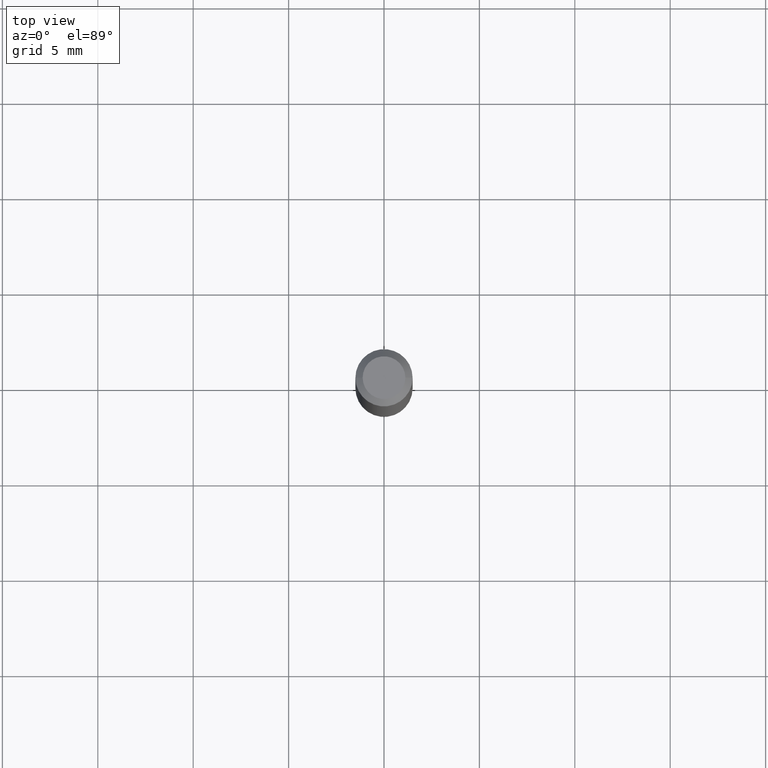
[diagram: clean part render]
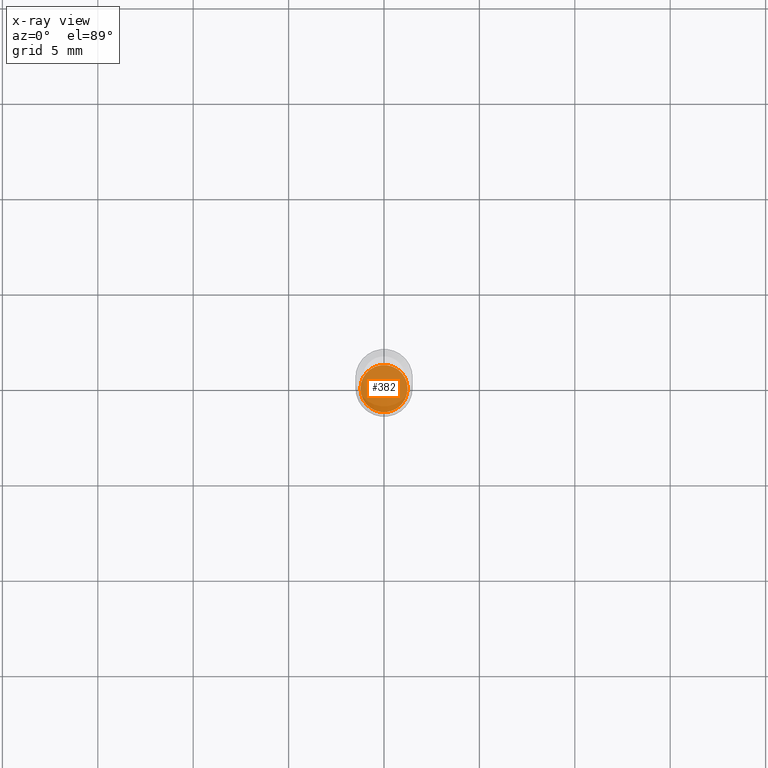
[diagram: x-ray — body ghosted, one internal face saturated and labeled with its STEP entity id]
A machine part, top view, then the same camera in x-ray: the body is ghosted and one INTERNAL B-rep face — a face not visible from any outside direction — is saturated and labeled: STEP entity #382.
In plain terms, the highlighted planar face has unit normal (-0, 0, 1).
Its self-contained STEP definition (entity closure, byte-faithful):
#31 = VERTEX_POINT ( 'NONE', #41 ) ;
#39 = PLANE ( 'NONE',  #424 ) ;
#41 = CARTESIAN_POINT ( 'NONE',  ( -0.04870000000000000023, -4.201065793157224292E-15, -1.303100000000000147 ) ) ;
#66 = CARTESIAN_POINT ( 'NONE',  ( 0.04870000000000000023, -4.889819615049825556E-15, -1.303100000000000147 ) ) ;
#67 = FACE_OUTER_BOUND ( 'NONE', #253, .T. ) ;
#93 = VERTEX_POINT ( 'NONE', #66 ) ;
#150 = DIRECTION ( 'NONE',  ( -2.438088387897960049E-29, 3.491481338843145188E-15, 1.000000000000000000 ) ) ;
#178 = DIRECTION ( 'NONE',  ( -2.445468806185136597E-29, 3.491481338843145583E-15, 1.000000000000000000 ) ) ;
#188 = CARTESIAN_POINT ( 'NONE',  ( 3.186690401339851824E-29, -4.549749332646504039E-15, -1.303100000000000147 ) ) ;
#193 = CIRCLE ( 'NONE', #223, 0.04870000000000000023 ) ;
#209 = EDGE_CURVE ( 'NONE', #93, #31, #440, .T. ) ;
#223 = AXIS2_PLACEMENT_3D ( 'NONE', #453, #379, #420 ) ;
#243 = AXIS2_PLACEMENT_3D ( 'NONE', #287, #178, #247 ) ;
#247 = DIRECTION ( 'NONE',  ( 1.000000000000000000, -6.982962677686271444E-15, 0.000000000000000000 ) ) ;
#253 = EDGE_LOOP ( 'NONE', ( #294, #266 ) ) ;
#266 = ORIENTED_EDGE ( 'NONE', *, *, #459, .F. ) ;
#287 = CARTESIAN_POINT ( 'NONE',  ( 3.186690401339851824E-29, -4.549749332646504039E-15, -1.303100000000000147 ) ) ;
#294 = ORIENTED_EDGE ( 'NONE', *, *, #209, .F. ) ;
#379 = DIRECTION ( 'NONE',  ( -2.445468806185136597E-29, 3.491481338843145583E-15, 1.000000000000000000 ) ) ;
#382 = ADVANCED_FACE ( 'NONE', ( #67 ), #39, .F. ) ;
#420 = DIRECTION ( 'NONE',  ( 1.000000000000000000, -6.982962677686271444E-15, 0.000000000000000000 ) ) ;
#424 = AXIS2_PLACEMENT_3D ( 'NONE', #188, #150, #446 ) ;
#440 = CIRCLE ( 'NONE', #243, 0.04870000000000000023 ) ;
#446 = DIRECTION ( 'NONE',  ( 1.000000000000000000, -6.982962677686265922E-15, 4.876176775795935793E-29 ) ) ;
#453 = CARTESIAN_POINT ( 'NONE',  ( 3.186690401339851824E-29, -4.549749332646504039E-15, -1.303100000000000147 ) ) ;
#459 = EDGE_CURVE ( 'NONE', #31, #93, #193, .T. ) ;